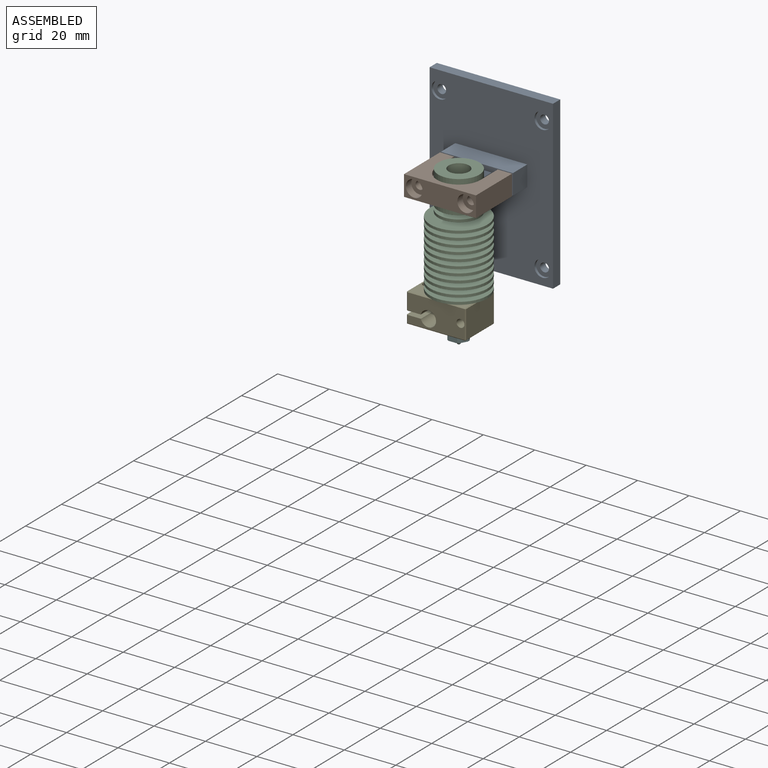
[diagram: assembled view]
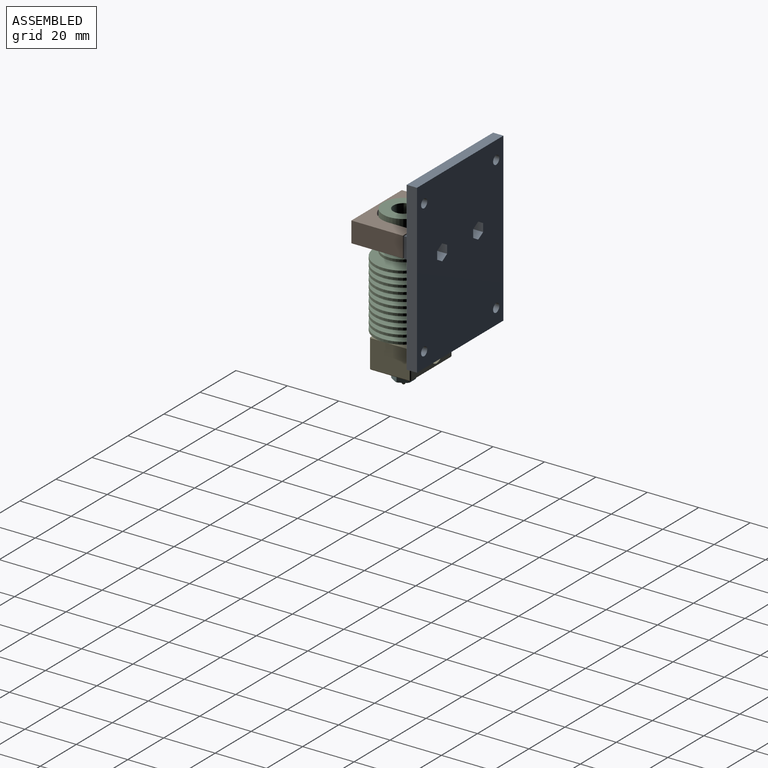
[diagram: assembled view, second angle]
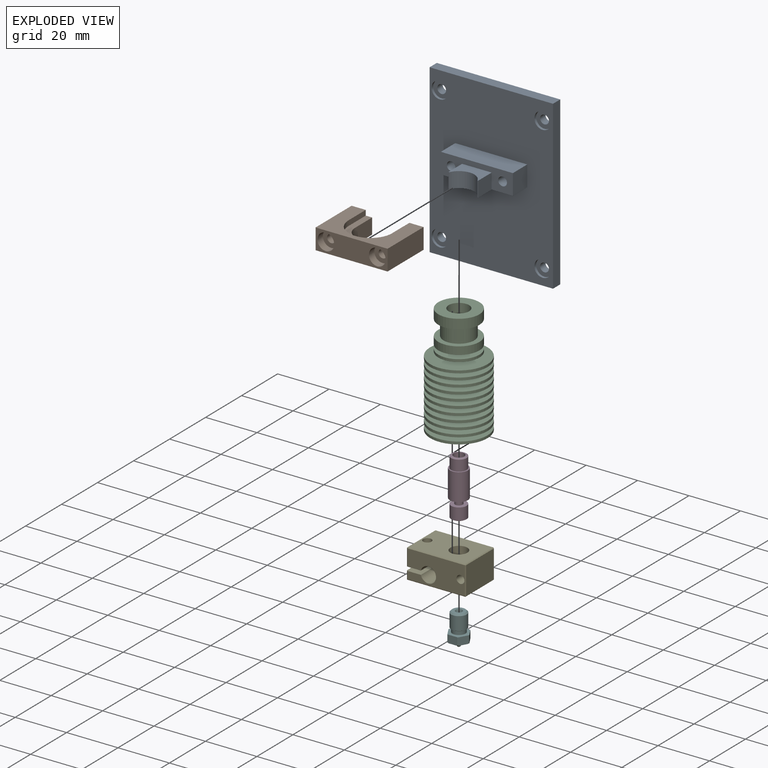
[diagram: exploded view]
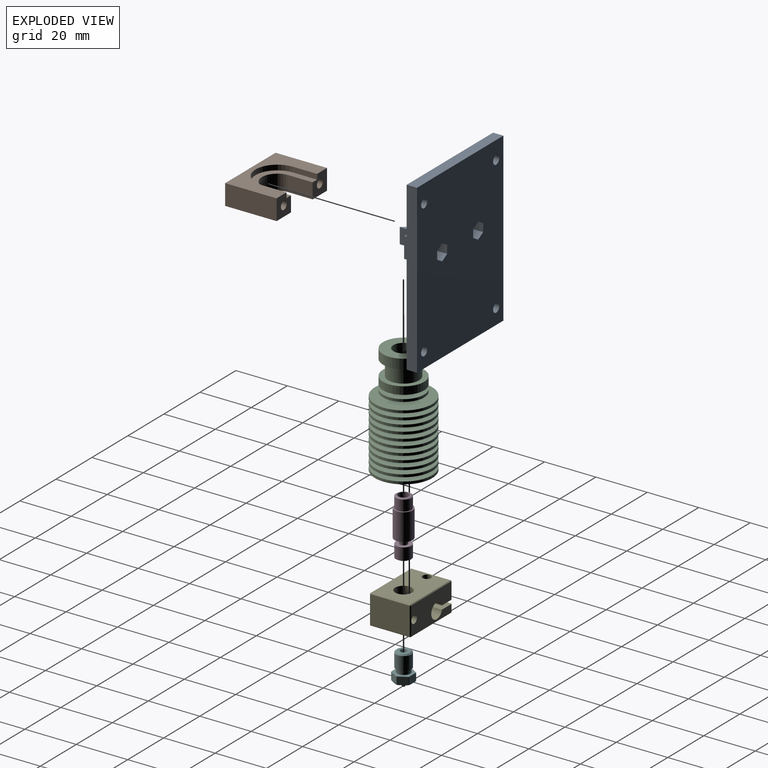
[diagram: exploded view, second angle]
ASSEMBLY  parts=6 mates=10
PART A: 45 faces, bbox 48x65x19.5 mm
  f0: plane 11.5x7.5mm, normal (0,1,0), area 58.8mm2, adj f1,f2,f22,f23,f24,f27
  f1: plane 7.5x6mm, normal (1,0,0), area 45mm2, adj f0,f21,f22,f27
  f2: plane 7.5x6mm, normal (-1,0,0), area 45mm2, adj f0,f21,f24,f27
  f3: plane 65x48mm, normal (0,0,1), area 2763.3mm2, adj f4,f5,f6,f7,f11,f14,f17,f20
  f4: plane 65x4mm, normal (1,0,0), area 260mm2, adj f3,f5,f7,f8
  f5: plane 48x4mm, normal (0,1,0), area 192mm2, adj f3,f4,f6,f8
  f6: plane 65x4mm, normal (-1,0,0), area 260mm2, adj f3,f5,f7,f8
  f7: plane 48x4mm, normal (0,-1,0), area 192mm2, adj f3,f4,f6,f8
  f8: plane 65x48mm, normal (0,0,-1), area 3031.3mm2, adj f4,f5,f6,f7,f9,f12,f15,f18
  f9: cylinder r=1.7mm len=3.4mm, axis (0,0,1), area 32mm2, adj f8,f10
  f10: plane 6.5x6.5mm, normal (0,0,1), area 24.1mm2, adj f9,f11
  f11: cylinder r=3.25mm len=6.5mm, axis (0,0,1), area 20.4mm2, adj f3,f10
  f12: cylinder r=1.7mm len=3.4mm, axis (0,0,1), area 32mm2, adj f8,f13
  f13: plane 6.5x6.5mm, normal (0,0,1), area 24.1mm2, adj f12,f14
  f14: cylinder r=3.25mm len=6.5mm, axis (0,0,1), area 20.4mm2, adj f3,f13
  f15: cylinder r=1.7mm len=3.4mm, axis (0,0,1), area 32mm2, adj f8,f16
  f16: plane 6.5x6.5mm, normal (0,0,1), area 24.1mm2, adj f15,f17
  f17: cylinder r=3.25mm len=6.5mm, axis (0,0,1), area 20.4mm2, adj f3,f16
  f18: cylinder r=1.7mm len=3.4mm, axis (0,0,1), area 32mm2, adj f8,f19
  f19: plane 6.5x6.5mm, normal (0,0,1), area 24.1mm2, adj f18,f20
  f20: cylinder r=3.25mm len=6.5mm, axis (0,0,1), area 20.4mm2, adj f3,f19
  f21: plane 28x15.5mm, normal (0,-1,0), area 282.8mm2, adj f1,f2,f3,f22,f23,f24,f25,f26
  f22: plane 6x0.3mm, normal (0,0,1), area 1.8mm2, adj f0,f1,f21,f23
  f23: cylinder r=6mm len=10.91mm, axis (0,1,0), area 82.2mm2, adj f0,f21,f22,f24
  f24: plane 6x0.3mm, normal (0,0,1), area 1.8mm2, adj f0,f2,f21,f23
  f25: plane 8x8mm, normal (-1,0,0), area 64mm2, adj f3,f21,f27,f28
  f26: plane 8x8mm, normal (1,0,0), area 64mm2, adj f3,f21,f27,f28
  f27: plane 28x8mm, normal (0,0,1), area 136.8mm2, adj f0,f1,f2,f21,f25,f26,f28,f43
  f28: plane 28x8mm, normal (0,1,0), area 224mm2, adj f3,f25,f26,f27
  f29: plane 4x2.75mm, normal (-0.5,-0.87,0), area 12.7mm2, adj f8,f30,f34,f35
  f30: plane 4x3.18mm, normal (-1,0,0), area 12.7mm2, adj f8,f29,f31,f35
  f31: plane 4x2.75mm, normal (-0.5,0.87,0), area 12.7mm2, adj f8,f30,f32,f35
  f32: plane 4x2.75mm, normal (0.5,0.87,0), area 12.7mm2, adj f8,f31,f33,f35
  f33: plane 4x3.18mm, normal (1,0,0), area 12.7mm2, adj f8,f32,f34,f35
  f34: plane 4x2.75mm, normal (0.5,-0.87,0), area 12.7mm2, adj f8,f29,f33,f35
  f35: plane 6.35x5.5mm, normal (0,0,-1), area 17.1mm2, adj f29,f30,f31,f32,f33,f34,f44
  f36: plane 4x2.75mm, normal (0.5,0.87,0), area 12.7mm2, adj f8,f37,f41,f42
  f37: plane 4x3.18mm, normal (1,0,0), area 12.7mm2, adj f8,f36,f38,f42
  f38: plane 4x2.75mm, normal (0.5,-0.87,0), area 12.7mm2, adj f8,f37,f39,f42
  f39: plane 4x2.75mm, normal (-0.5,-0.87,0), area 12.7mm2, adj f8,f38,f40,f42
  f40: plane 4x3.18mm, normal (-1,0,0), area 12.7mm2, adj f8,f39,f41,f42
  f41: plane 4x2.75mm, normal (-0.5,0.87,0), area 12.7mm2, adj f8,f36,f40,f42
  f42: plane 6.35x5.5mm, normal (0,0,-1), area 17.1mm2, adj f36,f37,f38,f39,f40,f41,f43
  f43: cylinder r=1.7mm len=8mm, axis (0,0,1), area 85.5mm2, adj f27,f42
  f44: cylinder r=1.7mm len=8mm, axis (0,0,1), area 85.5mm2, adj f27,f35
PART B: 20 faces, bbox 28x20x8 mm
  f0: plane 8x8mm, normal (0,-1,0), area 51mm2, adj f4,f5,f8,f9,f13,f18,f19
  f1: plane 8x8mm, normal (0,-1,0), area 51mm2, adj f2,f7,f8,f9,f10,f17,f19
  f2: plane 9.5x6mm, normal (1,0,0), area 57mm2, adj f1,f3,f9,f19
  f3: cylinder r=6mm len=12mm, axis (0,0,-1), area 113.1mm2, adj f2,f4,f9,f19
  f4: plane 9.5x6mm, normal (-1,0,0), area 57mm2, adj f0,f3,f9,f19
  f5: plane 20x8mm, normal (1,0,0), area 160mm2, adj f0,f6,f8,f9
  f6: plane 28x8mm, normal (0,1,0), area 157.6mm2, adj f5,f7,f8,f9,f12,f15
  f7: plane 20x8mm, normal (-1,0,0), area 160mm2, adj f1,f6,f8,f9
  f8: plane 28x20mm, normal (0,0,1), area 285mm2, adj f0,f1,f5,f6,f7,f16,f17,f18
  f9: plane 28x20mm, normal (0,0,-1), area 389.5mm2, adj f0,f1,f2,f3,f4,f5,f6,f7
  f10: cylinder r=1.6mm len=17mm, axis (0,1,0), area 170.9mm2, adj f1,f11
  f11: plane 6.5x6.5mm, normal (0,1,0), area 25.1mm2, adj f10,f12
  f12: cylinder r=3.25mm len=6.5mm, axis (0,1,0), area 61.3mm2, adj f6,f11
  f13: cylinder r=1.6mm len=17mm, axis (0,1,0), area 170.9mm2, adj f0,f14
  f14: plane 6.5x6.5mm, normal (0,1,0), area 25.1mm2, adj f13,f15
  f15: cylinder r=3.25mm len=6.5mm, axis (0,1,0), area 61.3mm2, adj f6,f14
  f16: cylinder r=8.5mm len=17mm, axis (0,0,1), area 53.4mm2, adj f8,f17,f18,f19
  f17: plane 9.5x2mm, normal (1,0,0), area 19mm2, adj f1,f8,f16,f19
  f18: plane 9.5x2mm, normal (-1,0,0), area 19mm2, adj f0,f8,f16,f19
  f19: plane 18x17mm, normal (0,0,1), area 104.4mm2, adj f0,f1,f2,f3,f4,f16,f17,f18
PART C: 62 faces, bbox 22.3x22.3x42.7 mm
  f0: plane 16x16mm, normal (0,0,1), area 150.8mm2, adj f1,f2
  f1: cylinder r=4mm len=8mm, axis (0,0,1), area 163.4mm2, adj f0,f3
  f2: cylinder r=8mm len=16mm, axis (0,0,-1), area 186mm2, adj f0,f4
  f3: cone r=2.1mm half-angle=59deg, axis (0,0,1), area 42.5mm2, adj f1,f5
  f4: plane 16x16mm, normal (0,0,-1), area 88mm2, adj f2,f6
  f5: cylinder r=2.1mm len=19.42mm, axis (0,0,1), area 256.2mm2, adj f3,f7
  f6: cylinder r=6mm len=12mm, axis (0,0,-1), area 226.2mm2, adj f4,f8
  f7: cone r=3mm half-angle=59deg, axis (0,0,-1), area 16.8mm2, adj f5,f9
  f8: plane 16x16mm, normal (0,0,1), area 88mm2, adj f6,f10
  f9: cylinder r=3mm len=6mm, axis (0,0,1), area 86.7mm2, adj f7,f11
  f10: cylinder r=8mm len=16mm, axis (0,0,-1), area 150.8mm2, adj f8,f12
  f11: plane 6.25x6.25mm, normal (0,0,-1), area 2.4mm2, adj f9,f13
  f12: plane 16x16mm, normal (0,0,-1), area 134.9mm2, adj f10,f14
  f13: cylinder r=3.12mm len=10.5mm, axis (0,0,1), area 206.2mm2, adj f11,f15
  f14: cylinder r=4.59mm len=9.18mm, axis (0,0,-1), area 43.3mm2, adj f12,f16
  f15: plane 22.3x22.3mm, normal (0,0,-1), area 359.9mm2, adj f13,f17
  f16: plane 16x16mm, normal (0,0,1), area 134.9mm2, adj f14,f18
  f17: cylinder r=11.15mm len=22.3mm, axis (0,0,-1), area 70.1mm2, adj f15,f19
  f18: cylinder r=8mm len=16mm, axis (0,0,-1), area 50.3mm2, adj f16,f20
  f19: plane 22.3x22.3mm, normal (0,0,1), area 270.2mm2, adj f17,f21
  f20: plane 16x16mm, normal (0,0,-1), area 134.9mm2, adj f18,f22
  f21: cylinder r=6.19mm len=12.38mm, axis (0,0,-1), area 58.3mm2, adj f19,f23
  f22: cylinder r=4.59mm len=9.18mm, axis (0,0,-1), area 43.3mm2, adj f20,f24
  f23: plane 22.3x22.3mm, normal (0,0,-1), area 270.2mm2, adj f21,f25
  f24: plane 22.3x22.3mm, normal (0,0,1), area 324.4mm2, adj f22,f26
  f25: cylinder r=11.15mm len=22.3mm, axis (0,0,-1), area 70.1mm2, adj f23,f27
  f26: cylinder r=11.15mm len=22.3mm, axis (0,0,-1), area 70.1mm2, adj f24,f28
  f27: plane 22.3x22.3mm, normal (0,0,1), area 276.3mm2, adj f25,f29
  f28: plane 22.3x22.3mm, normal (0,0,-1), area 319.7mm2, adj f26,f30
  f29: cylinder r=6.03mm len=12.06mm, axis (0,0,-1), area 56.8mm2, adj f27,f31
  f30: cylinder r=4.75mm len=9.5mm, axis (0,0,-1), area 44.8mm2, adj f28,f32
  f31: plane 22.3x22.3mm, normal (0,0,-1), area 276.3mm2, adj f29,f33
  f32: plane 22.3x22.3mm, normal (0,0,1), area 319.7mm2, adj f30,f34
  f33: cylinder r=11.15mm len=22.3mm, axis (0,0,-1), area 70.1mm2, adj f31,f35
  f34: cylinder r=11.15mm len=22.3mm, axis (0,0,-1), area 70.1mm2, adj f32,f36
  f35: plane 22.3x22.3mm, normal (0,0,1), area 282.3mm2, adj f33,f37
  f36: plane 22.3x22.3mm, normal (0,0,-1), area 314.8mm2, adj f34,f38
  f37: cylinder r=5.87mm len=11.74mm, axis (0,0,-1), area 55.3mm2, adj f35,f39
  f38: cylinder r=4.91mm len=9.82mm, axis (0,0,-1), area 46.3mm2, adj f36,f40
  f39: plane 22.3x22.3mm, normal (0,0,-1), area 282.3mm2, adj f37,f41
  f40: plane 22.3x22.3mm, normal (0,0,1), area 314.8mm2, adj f38,f42
  f41: cylinder r=11.15mm len=22.3mm, axis (0,0,-1), area 70.1mm2, adj f39,f43
  f42: cylinder r=11.15mm len=22.3mm, axis (0,0,-1), area 70.1mm2, adj f40,f44
  f43: plane 22.3x22.3mm, normal (0,0,1), area 288.1mm2, adj f41,f45
  f44: plane 22.3x22.3mm, normal (0,0,-1), area 309.8mm2, adj f42,f46
  f45: cylinder r=5.71mm len=11.42mm, axis (0,0,-1), area 53.8mm2, adj f43,f47
  f46: cylinder r=5.07mm len=10.14mm, axis (0,0,-1), area 47.8mm2, adj f44,f48
  f47: plane 22.3x22.3mm, normal (0,0,-1), area 288.1mm2, adj f45,f49
  f48: plane 22.3x22.3mm, normal (0,0,1), area 309.8mm2, adj f46,f50
  f49: cylinder r=11.15mm len=22.3mm, axis (0,0,-1), area 70.1mm2, adj f47,f51
  f50: cylinder r=11.15mm len=22.3mm, axis (0,0,-1), area 70.1mm2, adj f48,f52
  f51: plane 22.3x22.3mm, normal (0,0,1), area 293.8mm2, adj f49,f53
  f52: plane 22.3x22.3mm, normal (0,0,-1), area 304.6mm2, adj f50,f54
  f53: cylinder r=5.55mm len=11.1mm, axis (0,0,-1), area 52.3mm2, adj f51,f55
  f54: cylinder r=5.23mm len=10.46mm, axis (0,0,-1), area 49.3mm2, adj f52,f56
  f55: plane 22.3x22.3mm, normal (0,0,-1), area 293.8mm2, adj f53,f57
  f56: plane 22.3x22.3mm, normal (0,0,1), area 304.6mm2, adj f54,f58
  f57: cylinder r=11.15mm len=22.3mm, axis (0,0,-1), area 70.1mm2, adj f55,f59
  f58: cylinder r=11.15mm len=22.3mm, axis (0,0,-1), area 70.1mm2, adj f56,f60
  f59: plane 22.3x22.3mm, normal (0,0,1), area 299.3mm2, adj f57,f61
  f60: plane 22.3x22.3mm, normal (0,0,-1), area 299.3mm2, adj f58,f61
  f61: cylinder r=5.39mm len=10.78mm, axis (0,0,-1), area 50.8mm2, adj f59,f60
PART D: 14 faces, bbox 7x7x22.1 mm
  f0: cylinder r=1mm len=16.97mm, axis (0,0,1), area 106.6mm2, adj f1,f13
  f1: cone r=1mm half-angle=60deg, axis (0,0,1), area 12.4mm2, adj f0,f2
  f2: cylinder r=2.1mm len=4.5mm, axis (0,0,1), area 59.4mm2, adj f1,f3
  f3: plane 5x5mm, normal (0,0,1), area 5.8mm2, adj f2,f4
  f4: cone r=2.5mm half-angle=59deg, axis (0,0,-1), area 10.1mm2, adj f3,f5
  f5: cylinder r=3mm len=6mm, axis (0,0,-1), area 79.2mm2, adj f4,f6
  f6: plane 7x7mm, normal (0,0,1), area 10.2mm2, adj f5,f7
  f7: cylinder r=3.5mm len=10.5mm, axis (0,0,-1), area 230.9mm2, adj f6,f8
  f8: plane 7x7mm, normal (0,0,-1), area 31.6mm2, adj f7,f9
  f9: cylinder r=1.47mm len=2.95mm, axis (0,0,-1), area 19.5mm2, adj f8,f10
  f10: plane 6x6mm, normal (0,0,1), area 21.4mm2, adj f9,f11
  f11: cylinder r=3mm len=6mm, axis (0,0,-1), area 88.6mm2, adj f10,f12
  f12: cone r=3mm half-angle=60deg, axis (0,0,1), area 10.3mm2, adj f11,f13
  f13: plane 4.96x4.96mm, normal (0,0,-1), area 16.2mm2, adj f0,f12
PART E: 38 faces, bbox 23x16x11.5 mm
  f0: plane 22.4x15.4mm, normal (0,0,1), area 302.2mm2, adj f1,f2,f3,f4,f5,f6
  f1: plane 15.4x0.3mm, normal (-0.71,0,0.71), area 6.5mm2, adj f0,f7,f8,f9
  f2: plane 22.4x0.3mm, normal (0,0.71,0.71), area 9.5mm2, adj f0,f7,f10,f11
  f3: plane 22.4x0.3mm, normal (0,-0.71,0.71), area 9.5mm2, adj f0,f8,f12,f13
  f4: plane 15.4x0.3mm, normal (0.71,0,0.71), area 6.5mm2, adj f0,f11,f13,f14
  f5: cylinder r=3.3mm len=11.5mm, axis (0,0,1), area 238.4mm2, adj f0,f15
  f6: cylinder r=1.65mm len=6.75mm, axis (0,0,1), area 70mm2, adj f0,f16
  f7: plane 0.3x0.3mm, normal (-0.58,0.58,0.58), area 0.1mm2, adj f1,f2,f17
  f8: plane 0.3x0.3mm, normal (-0.58,-0.58,0.58), area 0.1mm2, adj f1,f3,f18
  f9: plane 15.4x6.45mm, normal (-1,0,0), area 99.3mm2, adj f1,f16,f17,f18
  f10: plane 22.4x10.9mm, normal (0,1,0), area 200.5mm2, adj f2,f16,f17,f19,f20,f21,f22,f23
  f11: plane 0.3x0.3mm, normal (0.58,0.58,0.58), area 0.1mm2, adj f2,f4,f20
  f12: plane 22.4x10.9mm, normal (0,-1,0), area 200.5mm2, adj f3,f16,f18,f19,f21,f24,f25,f26
  f13: plane 0.3x0.3mm, normal (0.58,-0.58,0.58), area 0.1mm2, adj f3,f4,f25
  f14: plane 15.4x10.9mm, normal (1,0,0), area 167.9mm2, adj f4,f20,f25,f28
  f15: plane 22.7x15.4mm, normal (0,0,-1), area 298.3mm2, adj f5,f22,f26,f28,f29,f30,f31
  f16: plane 16x5.6mm, normal (0,0,-1), area 80.9mm2, adj f6,f9,f10,f12,f17,f18,f19
  f17: plane 6.45x0.3mm, normal (-0.71,0.71,0), area 2.7mm2, adj f7,f9,f10,f16
  f18: plane 6.45x0.3mm, normal (-0.71,-0.71,0), area 2.7mm2, adj f8,f9,f12,f16
  f19: cylinder r=3mm len=16mm, axis (0,1,0), area 277.3mm2, adj f10,f12,f16,f21
  f20: plane 10.9x0.3mm, normal (0.71,0.71,0), area 4.6mm2, adj f10,f11,f14,f32
  f21: plane 16x5.6mm, normal (0,0,1), area 80.9mm2, adj f10,f12,f19,f23,f27,f29,f31
  f22: plane 22.7x0.3mm, normal (0,0.71,-0.71), area 9.6mm2, adj f10,f15,f23,f32
  f23: plane 3.25x0.3mm, normal (-0.71,0.71,0), area 1.3mm2, adj f10,f21,f22,f29
  f24: cylinder r=1.55mm len=16mm, axis (0,1,0), area 146.5mm2, adj f10,f12,f30,f33,f34,f35
  f25: plane 10.9x0.3mm, normal (0.71,-0.71,0), area 4.6mm2, adj f12,f13,f14,f36
  f26: plane 22.7x0.3mm, normal (0,-0.71,-0.71), area 9.6mm2, adj f12,f15,f27,f36
  f27: plane 3.25x0.3mm, normal (-0.71,-0.71,0), area 1.3mm2, adj f12,f21,f26,f29
  f28: plane 15.4x0.3mm, normal (0.71,0,-0.71), area 6.5mm2, adj f14,f15,f32,f36
  f29: plane 15.4x3.25mm, normal (-1,0,0), area 50.1mm2, adj f15,f21,f23,f27
  f30: cylinder r=1.65mm len=5.11mm, axis (0,0,1), area 47.6mm2, adj f15,f24,f33,f34,f35,f37
  f31: cylinder r=1.65mm len=3.3mm, axis (0,0,1), area 33.7mm2, adj f15,f21
  f32: plane 0.3x0.3mm, normal (0.58,0.58,-0.58), area 0.1mm2, adj f20,f22,f28
  f33: bspline ~0.94x0.53mm, area 0.3mm2, adj f24,f30,f35,f37
  f34: cone r=1.65mm half-angle=59deg, axis (0,0,-1), area 0.6mm2, adj f24,f30
  f35: bspline ~0.94x0.53mm, area 0.3mm2, adj f24,f30,f33,f37
  f36: plane 0.3x0.3mm, normal (0.58,-0.58,-0.58), area 0.1mm2, adj f25,f26,f28
  f37: cone r=1.65mm half-angle=59deg, axis (0,0,-1), area 0mm2, adj f30,f33,f35
PART F: 34 faces, bbox 8x7.4x12.5 mm
  f0: cone r=2.5mm half-angle=45deg, axis (0,0,-1), area 12.2mm2, adj f1,f2
  f1: plane 5x5mm, normal (0,0,1), area 14.3mm2, adj f0,f3
  f2: cylinder r=3mm len=6mm, axis (0,0,-1), area 98.2mm2, adj f0,f4
  f3: cone r=1.3mm half-angle=15deg, axis (0,0,1), area 8.4mm2, adj f1,f5
  f4: cone r=3mm half-angle=60deg, axis (0,0,1), area 10mm2, adj f2,f6
  f5: cylinder r=1mm len=9.39mm, axis (0,0,-1), area 59mm2, adj f3,f7
  f6: cylinder r=2.5mm len=5mm, axis (0,0,-1), area 20.4mm2, adj f4,f8
  f7: cone r=0.2mm half-angle=30deg, axis (0,0,1), area 6mm2, adj f5,f9
  f8: torus R=2.7mm, axis (0,0,1), area 5.1mm2, adj f6,f10
  f9: cylinder r=0.2mm len=0.6mm, axis (0,0,1), area 0.8mm2, adj f7,f11
  f10: plane 8x7mm, normal (0,0,1), area 19.5mm2, adj f8,f12,f13,f14,f15,f16,f17,f18
  f11: plane 0.65x0.65mm, normal (0,0,-1), area 0.2mm2, adj f9,f24
  f12: cylinder r=4mm len=2.8mm, axis (0,0,1), area 0.4mm2, adj f10,f13,f23,f25
  f13: plane 3.37x3.02mm, normal (0.87,-0.5,0), area 11.5mm2, adj f10,f12,f14,f25,f26,f27
  f14: cylinder r=4mm len=2.8mm, axis (0,0,1), area 0.4mm2, adj f10,f13,f15,f26
  f15: plane 3.89x3.02mm, normal (0,-1,0), area 11.5mm2, adj f10,f14,f16,f26,f27,f28
  f16: cylinder r=4mm len=2.8mm, axis (0,0,1), area 0.4mm2, adj f10,f15,f17,f28
  f17: plane 3.37x3.02mm, normal (-0.87,-0.5,0), area 11.5mm2, adj f10,f16,f18,f27,f28,f29
  f18: cylinder r=4mm len=2.8mm, axis (0,0,1), area 0.4mm2, adj f10,f17,f19,f29
  f19: plane 3.37x3.02mm, normal (-0.87,0.5,0), area 11.5mm2, adj f10,f18,f20,f27,f29,f30
  f20: cylinder r=4mm len=2.8mm, axis (0,0,1), area 0.4mm2, adj f10,f19,f21,f30
  f21: plane 3.89x3.02mm, normal (0,1,0), area 11.5mm2, adj f10,f20,f22,f27,f30,f31
  f22: cylinder r=4mm len=2.8mm, axis (0,0,1), area 0.4mm2, adj f10,f21,f23,f31
  f23: plane 3.37x3.02mm, normal (0.87,0.5,0), area 11.5mm2, adj f10,f12,f22,f25,f27,f31
  f24: torus R=0.33mm, axis (0,0,1), area 0.6mm2, adj f11,f32
  f25: cone r=3.8mm half-angle=45deg, axis (0,0,1), area 0.2mm2, adj f12,f13,f23,f27
  f26: cone r=3.8mm half-angle=45deg, axis (0,0,1), area 0.2mm2, adj f13,f14,f15,f27
  f27: plane 7.6x7mm, normal (0,0,-1), area 31.3mm2, adj f13,f15,f17,f19,f21,f23,f25,f26
  f28: cone r=3.8mm half-angle=45deg, axis (0,0,1), area 0.2mm2, adj f15,f16,f17,f27
  f29: cone r=3.8mm half-angle=45deg, axis (0,0,1), area 0.2mm2, adj f17,f18,f19,f27
  f30: cone r=3.8mm half-angle=45deg, axis (0,0,1), area 0.2mm2, adj f19,f20,f21,f27
  f31: cone r=3.8mm half-angle=45deg, axis (0,0,1), area 0.2mm2, adj f21,f22,f23,f27
  f32: cone r=1.48mm half-angle=30deg, axis (0,0,1), area 12.2mm2, adj f24,f33
  f33: torus R=1.83mm, axis (0,0,1), area 4.3mm2, adj f27,f32
PLACE A rot(axis=(1,0,0),90deg) t=(7.01,64.19,79.51)mm fixed
PLACE B rot(axis=(0,0,1),180deg) t=(7.01,42.19,80.01)mm
PLACE C t=(7.01,42.19,28.05)mm
PLACE D t=(7.01,42.19,28.05)mm
PLACE E t=(7.01,42.19,28.05)mm
PLACE F t=(7.01,42.19,28.05)mm
MATE planar B.f7 <-> A.f26  axis (1,0,0) through (21.01,51.69,88.01)mm
MATE planar D.f4 <-> F.f24  axis (0,0,-1) through (7.01,42.19,40.55)mm
MATE planar E.f5 <-> C.f3  axis (0,0,1) through (7.01,42.19,45.55)mm
MATE planar A.f44 <-> B.f10  axis (0,-1,0) through (17.01,52.19,84.01)mm
MATE planar C.f3 <-> A.f23  axis (0,0,-1) through (7.01,42.19,86.01)mm
MATE planar F.f24 <-> E.f5  axis (0,0,1) through (7.01,42.19,33.05)mm
MATE cylindrical F.f24 <-> E.f5  axis (0,0,-1) through (7.01,42.19,40.05)mm
MATE cylindrical E.f5 <-> C.f41  axis (0,0,1) through (7.01,42.19,45.55)mm
MATE cylindrical B.f13 <-> A.f43  axis (0,1,0) through (-2.99,51.69,84.01)mm
MATE cylindrical D.f4 <-> F.f24  axis (0,0,-1) through (7.01,42.19,40.55)mm
